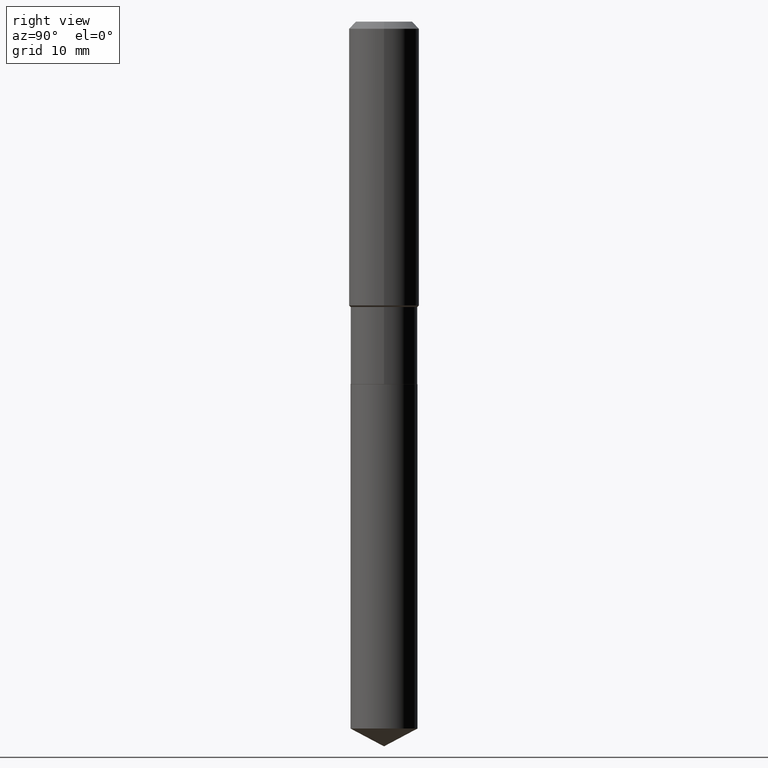
[diagram: clean part render]
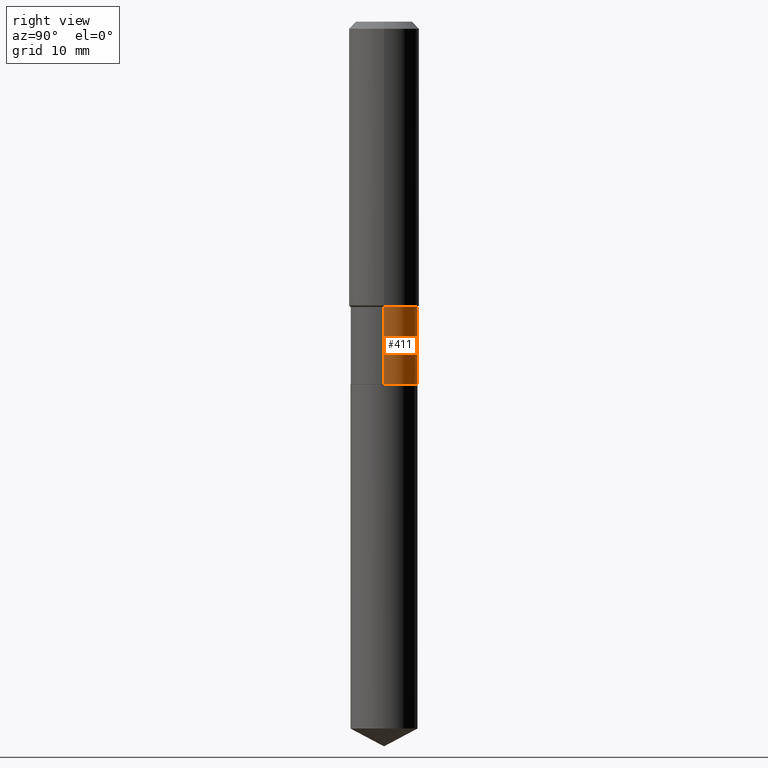
[diagram: same view with one face highlighted and labeled with its STEP entity id]
A machine part, right view. The second image highlights one B-rep face of the part: STEP entity #411.
In plain terms, the highlighted cylindrical surface (edge-blend (fillet) strip) has radius 4.7625 mm, axis along (-0, 0, 1).
Its self-contained STEP definition (entity closure, byte-faithful):
#17 = CARTESIAN_POINT ( 'NONE',  ( 3.904680042835807186E-29, -5.574848253730850378E-15, -1.596700000000000008 ) ) ;
#49 = DIRECTION ( 'NONE',  ( 1.000000000000000000, -6.982962677686264344E-15, 0.000000000000000000 ) ) ;
#58 = VERTEX_POINT ( 'NONE', #369 ) ;
#66 = CIRCLE ( 'NONE', #382, 0.1875000000000000278 ) ;
#67 = ORIENTED_EDGE ( 'NONE', *, *, #270, .F. ) ;
#111 = EDGE_CURVE ( 'NONE', #337, #58, #358, .T. ) ;
#125 = VECTOR ( 'NONE', #386, 39.37007874015748143 ) ;
#130 = DIRECTION ( 'NONE',  ( -2.445468806185136877E-29, 3.491481338843145188E-15, 1.000000000000000000 ) ) ;
#151 = CARTESIAN_POINT ( 'NONE',  ( -0.1875000000000000278, -4.994645704567475454E-15, -2.027499999999999414 ) ) ;
#155 = ORIENTED_EDGE ( 'NONE', *, *, #111, .T. ) ;
#170 = EDGE_CURVE ( 'NONE', #171, #58, #388, .T. ) ;
#171 = VERTEX_POINT ( 'NONE', #470 ) ;
#190 = DIRECTION ( 'NONE',  ( 1.000000000000000000, -6.982962677686266711E-15, 0.000000000000000000 ) ) ;
#208 = VECTOR ( 'NONE', #130, 39.37007874015748143 ) ;
#211 = CARTESIAN_POINT ( 'NONE',  ( -0.1874999999999999722, 1.332267629550187651E-15, -9.223003294227946589E-30 ) ) ;
#228 = CARTESIAN_POINT ( 'NONE',  ( 0.1875000000000000278, -8.388283916570652025E-15, -2.027499999999999414 ) ) ;
#231 = DIRECTION ( 'NONE',  ( 1.000000000000000000, -6.982962677686266711E-15, 4.876176775795935793E-29 ) ) ;
#236 = DIRECTION ( 'NONE',  ( -2.445468806185136597E-29, 3.491481338843145583E-15, 1.000000000000000000 ) ) ;
#263 = LINE ( 'NONE', #417, #125 ) ;
#270 = EDGE_CURVE ( 'NONE', #446, #171, #263, .T. ) ;
#299 = AXIS2_PLACEMENT_3D ( 'NONE', #304, #428, #231 ) ;
#304 = CARTESIAN_POINT ( 'NONE',  ( 0.000000000000000000, 0.000000000000000000, 0.000000000000000000 ) ) ;
#337 = VERTEX_POINT ( 'NONE', #151 ) ;
#341 = EDGE_CURVE ( 'NONE', #446, #337, #66, .T. ) ;
#345 = FACE_OUTER_BOUND ( 'NONE', #402, .T. ) ;
#354 = AXIS2_PLACEMENT_3D ( 'NONE', #17, #236, #49 ) ;
#358 = LINE ( 'NONE', #211, #208 ) ;
#369 = CARTESIAN_POINT ( 'NONE',  ( -0.1874999999999999445, -4.994645704567475454E-15, -1.596700000000000008 ) ) ;
#382 = AXIS2_PLACEMENT_3D ( 'NONE', #384, #424, #190 ) ;
#384 = CARTESIAN_POINT ( 'NONE',  ( 4.958188004540363822E-29, -7.078978414504476228E-15, -2.027499999999999414 ) ) ;
#386 = DIRECTION ( 'NONE',  ( -2.445468806185136877E-29, 3.491481338843145188E-15, 1.000000000000000000 ) ) ;
#388 = CIRCLE ( 'NONE', #354, 0.1874999999999999445 ) ;
#390 = CYLINDRICAL_SURFACE ( 'NONE', #299, 0.1874999999999999722 ) ;
#402 = EDGE_LOOP ( 'NONE', ( #483, #155, #487, #67 ) ) ;
#411 = ADVANCED_FACE ( 'NONE', ( #345 ), #390, .T. ) ;
#417 = CARTESIAN_POINT ( 'NONE',  ( 0.1874999999999999722, -1.309305502066174811E-15, 9.142831454617378210E-30 ) ) ;
#424 = DIRECTION ( 'NONE',  ( -2.445468806185136597E-29, 3.491481338843145583E-15, 1.000000000000000000 ) ) ;
#428 = DIRECTION ( 'NONE',  ( -2.445468806185136597E-29, 3.491481338843145583E-15, 1.000000000000000000 ) ) ;
#446 = VERTEX_POINT ( 'NONE', #228 ) ;
#470 = CARTESIAN_POINT ( 'NONE',  ( 0.1874999999999999445, -6.884153755797024597E-15, -1.596700000000000008 ) ) ;
#483 = ORIENTED_EDGE ( 'NONE', *, *, #341, .T. ) ;
#487 = ORIENTED_EDGE ( 'NONE', *, *, #170, .F. ) ;